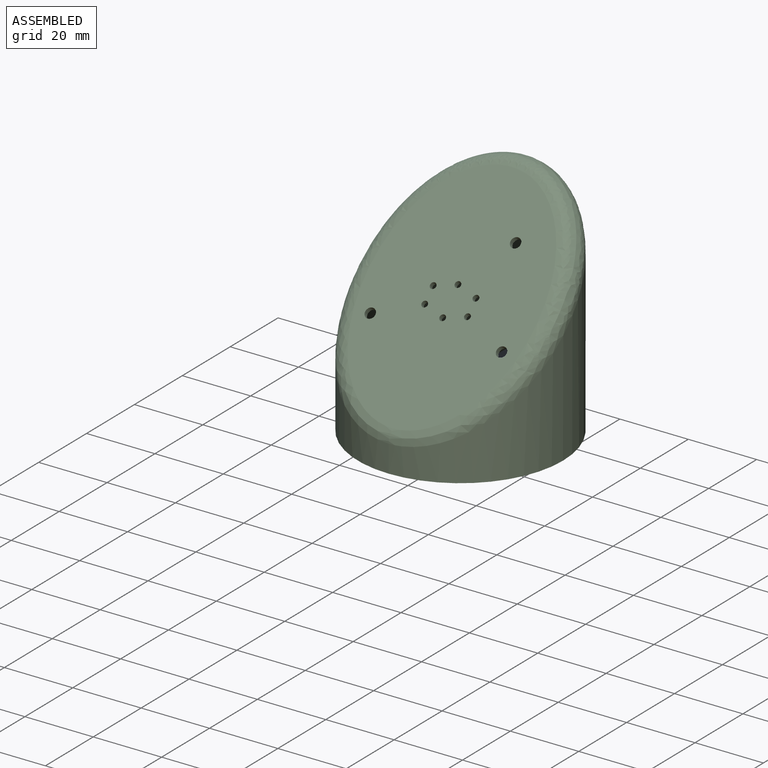
[diagram: assembled view]
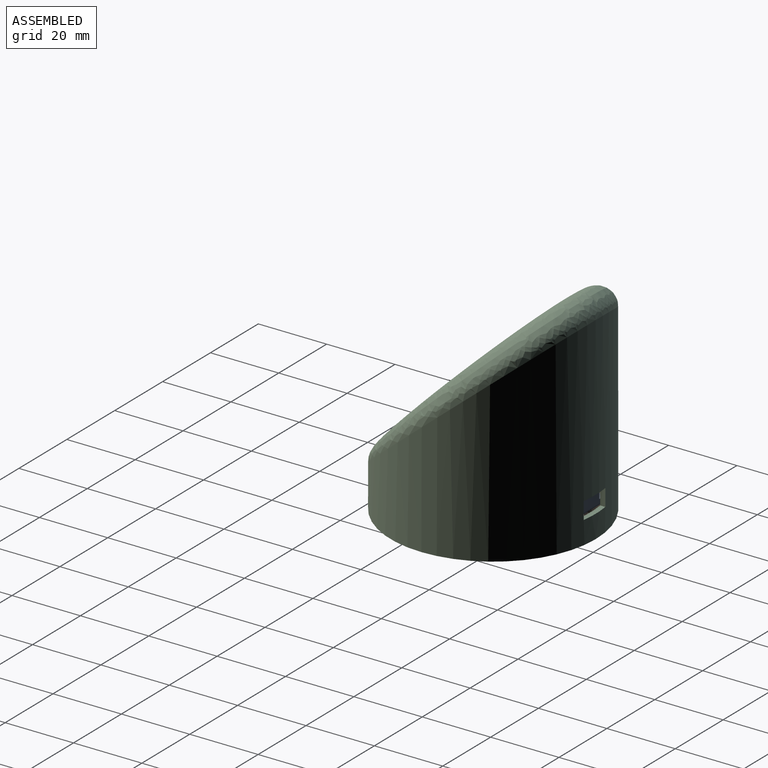
[diagram: assembled view, second angle]
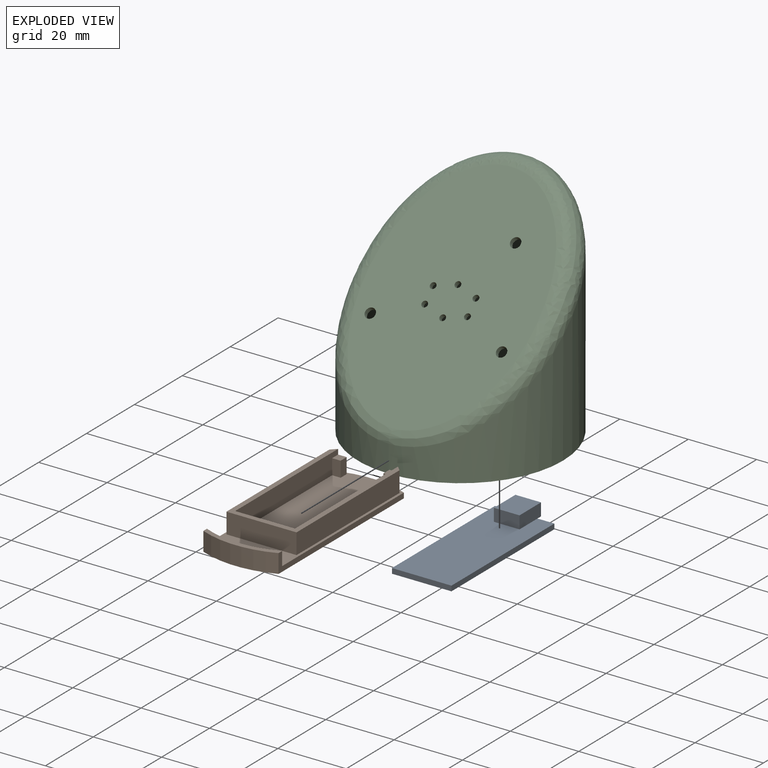
[diagram: exploded view]
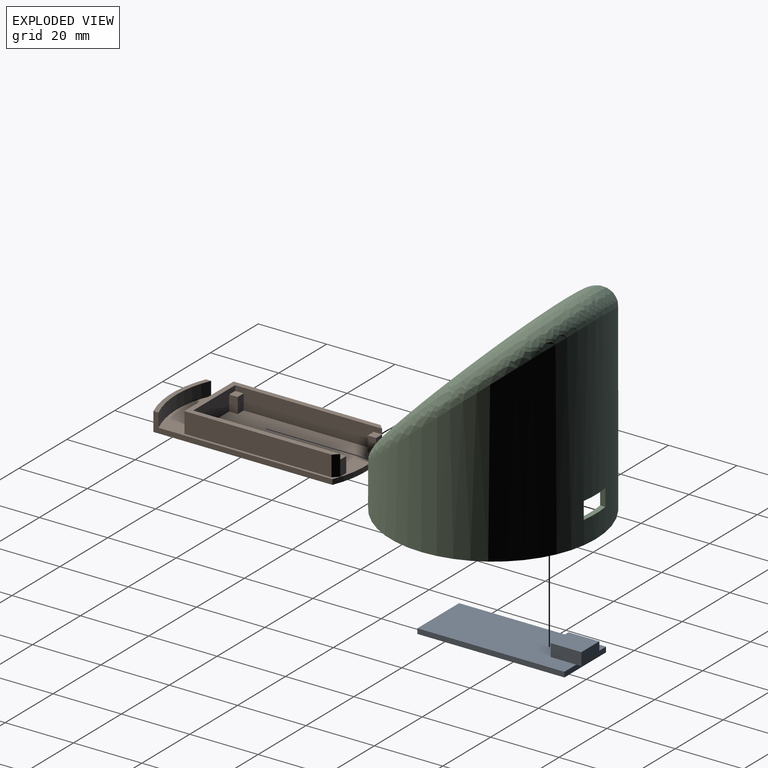
[diagram: exploded view, second angle]
ASSEMBLY  parts=3 mates=2
PART A: 12 faces, bbox 44.5x17.4x5.2 mm
  f0: plane 43x17.4mm, normal (0,0,1), area 691.9mm2, adj f1,f2,f3,f4,f6,f7,f8
  f1: plane 43x1.5mm, normal (0,1,0), area 64.5mm2, adj f0,f2,f4,f5
  f2: plane 17.4x1.5mm, normal (-1,0,0), area 26.1mm2, adj f0,f1,f3,f5
  f3: plane 43x1.5mm, normal (0,-1,0), area 64.5mm2, adj f0,f2,f4,f5
  f4: plane 17.4x1.5mm, normal (1,0,0), area 26.1mm2, adj f0,f1,f3,f5,f11
  f5: plane 43x17.4mm, normal (0,0,-1), area 748.2mm2, adj f1,f2,f3,f4
  f6: plane 9x3.7mm, normal (0,1,0), area 33.3mm2, adj f0,f7,f9,f10,f11
  f7: plane 7.5x3.7mm, normal (-1,0,0), area 27.7mm2, adj f0,f6,f8,f10
  f8: plane 9x3.7mm, normal (0,-1,0), area 33.3mm2, adj f0,f7,f9,f10,f11
  f9: plane 7.5x3.7mm, normal (1,0,0), area 27.7mm2, adj f6,f8,f10,f11
  f10: plane 9x7.5mm, normal (0,0,1), area 67.5mm2, adj f6,f7,f8,f9
  f11: plane 7.5x1.5mm, normal (0,0,-1), area 11.3mm2, adj f4,f6,f8,f9
PART B: 31 faces, bbox 56.8x22x7.5 mm
  f0: plane 55.44x22mm, normal (0,0,1), area 1004.1mm2, adj f1,f3,f4,f5,f7,f8,f9,f10
  f1: plane 43x6mm, normal (0,-1,0), area 235.5mm2, adj f0,f7,f13,f14,f16,f17,f21,f24
  f2: cylinder r=28.4mm len=22mm, axis (0,0,-1), area 124.2mm2, adj f3,f5,f6,f30
  f3: plane 52.37x5.5mm, normal (0,-1,0), area 84.5mm2, adj f0,f2,f4,f6,f29,f30
  f4: cylinder r=28.4mm len=22mm, axis (0,0,-1), area 33.9mm2, adj f0,f3,f5,f6
  f5: plane 52.37x5.5mm, normal (0,1,0), area 84.5mm2, adj f0,f2,f4,f6,f29,f30
  f6: plane 56.8x22mm, normal (0,0,-1), area 1217.6mm2, adj f2,f3,f4,f5
  f7: plane 6x1.5mm, normal (0.71,0.71,0), area 12.7mm2, adj f0,f1,f8,f14,f23
  f8: plane 43x6mm, normal (0,1,0), area 258mm2, adj f0,f7,f9,f14
  f9: plane 20.5x6mm, normal (-1,0,0), area 123mm2, adj f0,f8,f10,f14
  f10: plane 43x6mm, normal (0,-1,0), area 258mm2, adj f0,f9,f11,f14
  f11: plane 6x1.5mm, normal (0.71,-0.71,0), area 12.7mm2, adj f0,f10,f12,f14,f27
  f12: plane 43x6mm, normal (0,1,0), area 235.5mm2, adj f0,f11,f13,f14,f18,f20,f26,f28
  f13: plane 17.5x6mm, normal (1,0,0), area 82.5mm2, adj f0,f1,f12,f14,f15,f17,f19,f20
  f14: plane 44.5x20.5mm, normal (0,0,1), area 157.5mm2, adj f1,f7,f8,f9,f10,f11,f12,f13
  f15: plane 4.5x2.5mm, normal (0,-1,0), area 11.3mm2, adj f0,f13,f16,f17
  f16: plane 4.5x2.5mm, normal (1,0,0), area 11.3mm2, adj f0,f1,f15,f17
  f17: plane 2.5x2.5mm, normal (0,0,1), area 6.3mm2, adj f1,f13,f15,f16
  f18: plane 4.5x2.5mm, normal (1,0,0), area 11.3mm2, adj f0,f12,f19,f20
  f19: plane 4.5x2.5mm, normal (0,1,0), area 11.3mm2, adj f0,f13,f18,f20
  f20: plane 2.5x2.5mm, normal (0,0,1), area 6.3mm2, adj f12,f13,f18,f19
  f21: plane 4.5x2.5mm, normal (-1,0,0), area 11.3mm2, adj f0,f1,f22,f24
  f22: plane 4.5x2.5mm, normal (0,-1,0), area 11.2mm2, adj f0,f21,f23,f24
  f23: plane 4.5x2.5mm, normal (1,0,0), area 11.3mm2, adj f0,f7,f22,f24
  f24: plane 2.5x2.5mm, normal (0,0,1), area 6.2mm2, adj f1,f21,f22,f23
  f25: plane 4.5x2.5mm, normal (0,1,0), area 11.2mm2, adj f0,f26,f27,f28
  f26: plane 4.5x2.5mm, normal (-1,0,0), area 11.3mm2, adj f0,f12,f25,f28
  f27: plane 4.5x2.5mm, normal (1,0,0), area 11.3mm2, adj f0,f11,f25,f28
  f28: plane 2.5x2.5mm, normal (0,0,1), area 6.2mm2, adj f12,f25,f26,f27
  f29: cylinder r=26.9mm len=22mm, axis (0,0,-1), area 90.7mm2, adj f0,f3,f5,f30
  f30: plane 22x3.72mm, normal (0,0,1), area 31mm2, adj f2,f3,f5,f29
PART C: 20 faces, bbox 60x60x62.8 mm
  f0: cylinder r=30mm len=60mm, axis (0,0,-1), area 6161.7mm2, adj f2,f4,f16,f17,f18,f19
  f1: cylinder r=28.5mm len=58.27mm, axis (0,0,-1), area 5851.4mm2, adj f2,f6,f16,f17,f18,f19
  f2: plane 60x60mm, normal (0,0,-1), area 275.7mm2, adj f0,f1
  f3: plane 50x50mm, normal (0,-0.71,0.71), area 2740.3mm2, adj f4,f7,f8,f9,f10,f11,f12,f13
  f4: bspline ~59.97x59.94mm, area 1655.9mm2, adj f0,f3
  f5: plane 50x50mm, normal (0,0.71,-0.71), area 2740.3mm2, adj f6,f7,f8,f9,f10,f11,f12,f13
  f6: bspline ~56.97x56.94mm, area 1126.2mm2, adj f1,f5
  f7: cylinder r=1.5mm len=3.18mm, axis (0,-0.71,0.71), area 14.1mm2, adj f3,f5
  f8: cylinder r=1.5mm len=3.18mm, axis (0,-0.71,0.71), area 14.1mm2, adj f3,f5
  f9: cylinder r=0.9mm len=2.33mm, axis (0,-0.71,0.71), area 8.5mm2, adj f3,f5
  f10: cylinder r=0.9mm len=2.33mm, axis (0,-0.71,0.71), area 8.5mm2, adj f3,f5
  f11: cylinder r=0.9mm len=2.33mm, axis (0,-0.71,0.71), area 8.5mm2, adj f3,f5
  f12: cylinder r=0.9mm len=2.33mm, axis (0,-0.71,0.71), area 8.5mm2, adj f3,f5
  f13: cylinder r=0.9mm len=2.33mm, axis (0,-0.71,0.71), area 8.5mm2, adj f3,f5
  f14: cylinder r=0.9mm len=2.33mm, axis (0,-0.71,0.71), area 8.5mm2, adj f3,f5
  f15: cylinder r=1.5mm len=3.18mm, axis (0,-0.71,0.71), area 14.1mm2, adj f3,f5
  f16: plane 9x1.86mm, normal (0,0,-1), area 13.6mm2, adj f0,f1,f17,f18
  f17: plane 5x1.52mm, normal (1,0,0), area 7.6mm2, adj f0,f1,f16,f19
  f18: plane 5x1.52mm, normal (-1,0,0), area 7.6mm2, adj f0,f1,f16,f19
  f19: plane 9x1.86mm, normal (0,0,1), area 13.6mm2, adj f0,f1,f17,f18
PLACE A rot(axis=(0,0,1),90deg) t=(-3.77,-4.46,-40.37)mm
PLACE B rot(axis=(0,0,1),90deg) t=(-3.72,-9.86,-46.37)mm
PLACE C t=(-3.72,-9.86,-46.37)mm
MATE fastened B.f17 <-> A.f5  axis (0,0,1) through (-12.47,-25.96,-40.37)mm
MATE fastened B.f4 <-> C.f0  axis (0,0,-1) through (-3.72,-9.86,-46.37)mm
